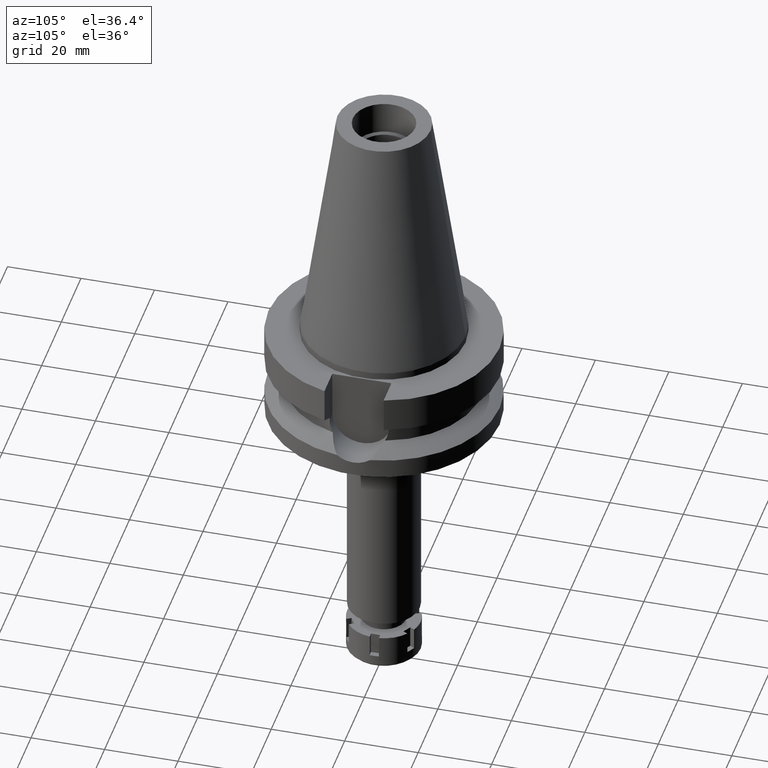
[diagram: clean part render]
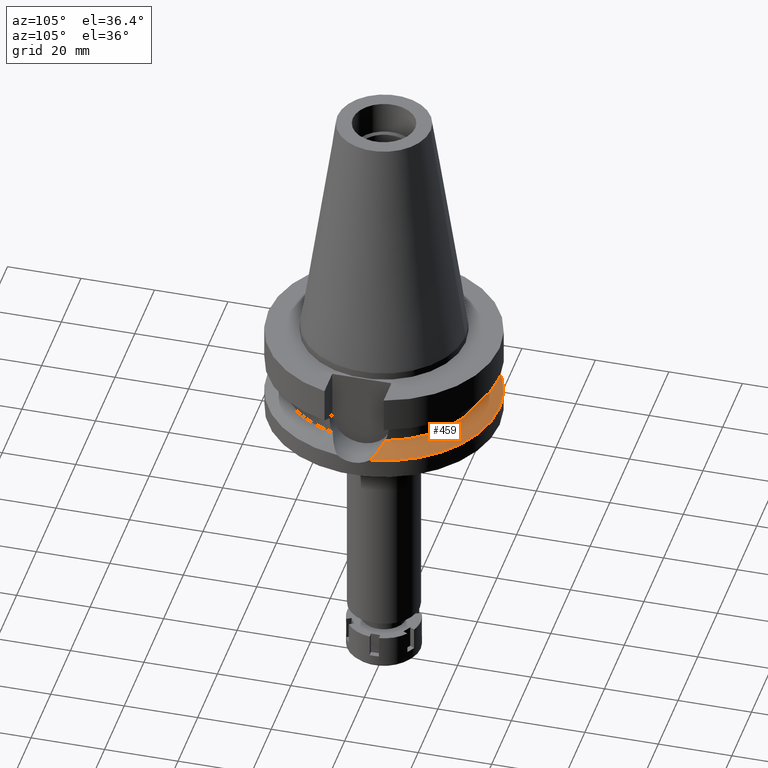
[diagram: same view with one face highlighted and labeled with its STEP entity id]
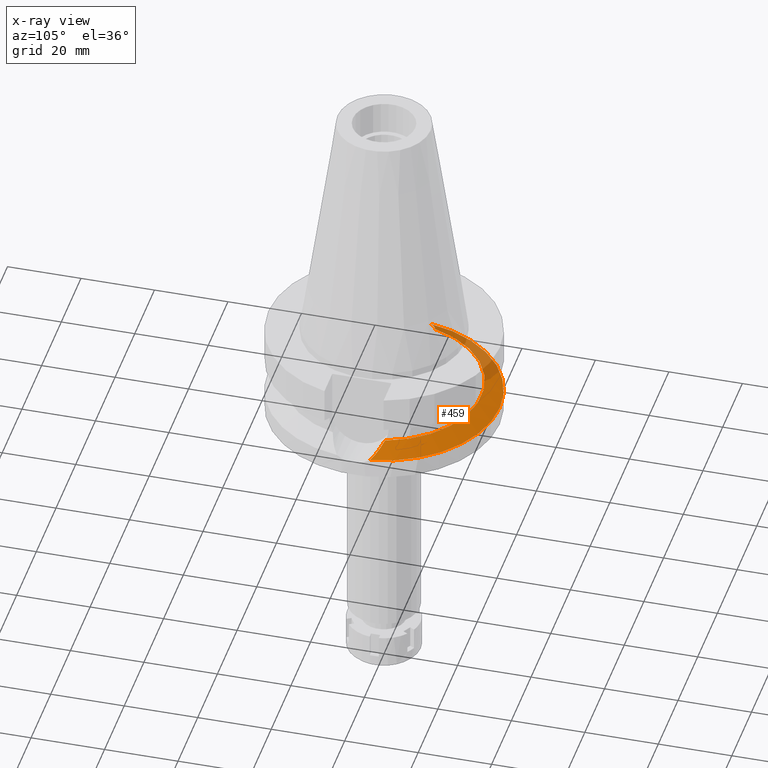
[diagram: x-ray of the same camera — body ghosted, the highlighted face saturated]
A machine part, auxiliary view. The second image highlights one B-rep face of the part: STEP entity #459.
The next image is the same camera in x-ray: the body ghosted, the highlighted face saturated — about 18% of this face is hidden behind the body in this view.
In plain terms, the highlighted conical surface has half-angle 60 deg.
Its self-contained STEP definition (entity closure, byte-faithful):
#87 = B_SPLINE_CURVE_WITH_KNOTS ( 'NONE', 3,
 ( #1014, #138, #1032, #2158, #3281, #748, #2915, #409, #1244, #2360, #3486, #958, #1385, #2211, #1067, #1917 ),
 .UNSPECIFIED., .F., .F.,
 ( 4, 2, 2, 2, 1, 1, 2, 2, 4 ),
 ( 0.0000000000000000000, 0.2499999999999975575, 0.4999999999999951150, 0.6249999999999943379, 0.6874999999999933387, 0.7187499999999924505, 0.7343749999999927836, 0.7499999999999932276, 1.000000000000000000 ),
 .UNSPECIFIED. ) ;
#92 = EDGE_CURVE ( 'NONE', #1330, #2366, #2931, .T. ) ;
#138 = CARTESIAN_POINT ( 'NONE',  ( -30.86032972888177284, 4.727300450069493287, -21.47226185997874026 ) ) ;
#224 = B_SPLINE_CURVE_WITH_KNOTS ( 'NONE', 3,
 ( #1976, #1682, #1993, #3602, #536, #872, #1706, #3364, #2549, #1722, #1411, #292, #3068, #3123, #2769, #3323, #313 ),
 .UNSPECIFIED., .F., .F.,
 ( 4, 2, 2, 1, 2, 2, 1, 1, 2, 4 ),
 ( 0.0000000000000000000, 0.5000000000000038858, 0.6250000000000056621, 0.6562500000000051070, 0.6640625000000048850, 0.6679687500000049960, 0.6718750000000049960, 0.6875000000000049960, 0.7500000000000032196, 1.000000000000000000 ),
 .UNSPECIFIED. ) ;
#258 = ORIENTED_EDGE ( 'NONE', *, *, #1332, .F. ) ;
#268 = DIRECTION ( 'NONE',  ( 0.0000000000000000000, 0.0000000000000000000, -1.000000000000000000 ) ) ;
#292 = CARTESIAN_POINT ( 'NONE',  ( 27.47216602194703228, 6.468187923245256599, -19.74223117247825954 ) ) ;
#313 = CARTESIAN_POINT ( 'NONE',  ( 25.53175183775000079, 7.097862220092999941, -18.74774300138999905 ) ) ;
#346 = DIRECTION ( 'NONE',  ( 0.0000000000000000000, 0.0000000000000000000, -1.000000000000000000 ) ) ;
#379 = DIRECTION ( 'NONE',  ( -0.9898094849552905306, 0.1423979757318985240, 0.0000000000000000000 ) ) ;
#409 = CARTESIAN_POINT ( 'NONE',  ( -27.98981289180329313, 6.263492374404993512, -20.00749629558576004 ) ) ;
#457 = DIRECTION ( 'NONE',  ( 0.0000000000000000000, 0.0000000000000000000, -1.000000000000000000 ) ) ;
#459 = ADVANCED_FACE ( 'NONE', ( #529 ), #2879, .T. ) ;
#529 = FACE_OUTER_BOUND ( 'NONE', #3400, .T. ) ;
#536 = CARTESIAN_POINT ( 'NONE',  ( 28.07309999939315048, 6.231437689321792206, -20.04933951519148394 ) ) ;
#668 = ORIENTED_EDGE ( 'NONE', *, *, #92, .F. ) ;
#748 = CARTESIAN_POINT ( 'NONE',  ( -28.61196776616745296, 5.994356437348675293, -20.32549372936791343 ) ) ;
#807 = ORIENTED_EDGE ( 'NONE', *, *, #2156, .F. ) ;
#830 = EDGE_CURVE ( 'NONE', #1330, #1326, #87, .T. ) ;
#872 = CARTESIAN_POINT ( 'NONE',  ( 27.73076219387298735, 6.368286279828025975, -19.87436834082274828 ) ) ;
#914 = ORIENTED_EDGE ( 'NONE', *, *, #830, .T. ) ;
#958 = CARTESIAN_POINT ( 'NONE',  ( -27.39108505831293527, 6.498442941451746613, -19.70117476956721703 ) ) ;
#1014 = CARTESIAN_POINT ( 'NONE',  ( -31.17899877608999759, 4.485536235554000051, -21.63449434733000132 ) ) ;
#1032 = CARTESIAN_POINT ( 'NONE',  ( -30.50623290938976240, 4.967307876415580026, -21.29187658601650668 ) ) ;
#1067 = CARTESIAN_POINT ( 'NONE',  ( -26.19287759724461040, 6.916130077656307940, -19.08739465962180049 ) ) ;
#1244 = CARTESIAN_POINT ( 'NONE',  ( -27.79548969834211292, 6.342925238653681852, -19.90812016838547294 ) ) ;
#1250 = CARTESIAN_POINT ( 'NONE',  ( 0.0000000000000000000, 0.0000000000000000000, -21.63449434733000132 ) ) ;
#1296 = VERTEX_POINT ( 'NONE', #2427 ) ;
#1314 = CARTESIAN_POINT ( 'NONE',  ( 0.0000000000000000000, 0.0000000000000000000, -21.63449434733000132 ) ) ;
#1326 = VERTEX_POINT ( 'NONE', #2512 ) ;
#1330 = VERTEX_POINT ( 'NONE', #2269 ) ;
#1332 = EDGE_CURVE ( 'NONE', #1449, #1296, #224, .T. ) ;
#1385 = CARTESIAN_POINT ( 'NONE',  ( -27.35550585259170830, 6.511715969301986817, -19.68296171336244171 ) ) ;
#1390 = CARTESIAN_POINT ( 'NONE',  ( 0.0000000000000000000, 0.0000000000000000000, -20.19111867435999841 ) ) ;
#1408 = CIRCLE ( 'NONE', #2943, 26.50000000000000000 ) ;
#1411 = CARTESIAN_POINT ( 'NONE',  ( 27.50786201929160413, 6.454603044755333308, -19.76046985264522249 ) ) ;
#1449 = VERTEX_POINT ( 'NONE', #3213 ) ;
#1682 = CARTESIAN_POINT ( 'NONE',  ( 30.47193627582761266, 5.021962385149107533, -21.27453309870601927 ) ) ;
#1706 = CARTESIAN_POINT ( 'NONE',  ( 27.64441911265427620, 6.402214308449976521, -19.83024259971176662 ) ) ;
#1722 = CARTESIAN_POINT ( 'NONE',  ( 27.52212522253209670, 6.449165464272829773, -19.76775730843760570 ) ) ;
#1807 = AXIS2_PLACEMENT_3D ( 'NONE', #1250, #346, #379 ) ;
#1895 = DIRECTION ( 'NONE',  ( 0.0000000000000000000, 1.000000000000000000, 0.0000000000000000000 ) ) ;
#1917 = CARTESIAN_POINT ( 'NONE',  ( -25.53175183775000079, 7.097862220092999941, -18.74774300138999905 ) ) ;
#1976 = CARTESIAN_POINT ( 'NONE',  ( 31.17899877608999759, 4.485536235554000051, -21.63449434733000132 ) ) ;
#1993 = CARTESIAN_POINT ( 'NONE',  ( 29.60950638460437290, 5.537010137810333354, -20.83481307751188893 ) ) ;
#2156 = EDGE_CURVE ( 'NONE', #1296, #1326, #1408, .T. ) ;
#2158 = CARTESIAN_POINT ( 'NONE',  ( -29.72729786355385073, 5.436249340728330992, -20.89480046487569709 ) ) ;
#2211 = CARTESIAN_POINT ( 'NONE',  ( -26.79001398397355871, 6.720942881516230649, -19.39345768061916786 ) ) ;
#2225 = AXIS2_PLACEMENT_3D ( 'NONE', #1390, #268, #3335 ) ;
#2254 = DIRECTION ( 'NONE',  ( 0.0000000000000000000, 0.0000000000000000000, 1.000000000000000000 ) ) ;
#2269 = CARTESIAN_POINT ( 'NONE',  ( -31.17899877608999759, 4.485536235554000051, -21.63449434733000132 ) ) ;
#2311 = CARTESIAN_POINT ( 'NONE',  ( 0.0000000000000000000, 31.50000000000000000, -21.63449434733000132 ) ) ;
#2360 = CARTESIAN_POINT ( 'NONE',  ( -27.56133985203772951, 6.434045890720126337, -19.78831492561573313 ) ) ;
#2366 = VERTEX_POINT ( 'NONE', #2311 ) ;
#2427 = CARTESIAN_POINT ( 'NONE',  ( 25.53175183775000079, 7.097862220092999941, -18.74774300138999905 ) ) ;
#2453 = EDGE_CURVE ( 'NONE', #2366, #1449, #3291, .T. ) ;
#2512 = CARTESIAN_POINT ( 'NONE',  ( -25.53175183775000079, 7.097862220092999941, -18.74774300138999905 ) ) ;
#2549 = CARTESIAN_POINT ( 'NONE',  ( 27.53088343634419743, 6.445821127107357995, -19.77223197169773528 ) ) ;
#2769 = CARTESIAN_POINT ( 'NONE',  ( 26.57880524411125478, 6.789416282836437944, -19.28524454639907049 ) ) ;
#2879 = CONICAL_SURFACE ( 'NONE', #2225, 29.00000000000000000, 1.047197551196400456 ) ;
#2915 = CARTESIAN_POINT ( 'NONE',  ( -28.36993029448185055, 6.103172289129155992, -20.20182977546896197 ) ) ;
#2931 = CIRCLE ( 'NONE', #1807, 31.50000000000001421 ) ;
#2943 = AXIS2_PLACEMENT_3D ( 'NONE', #3328, #2254, #3086 ) ;
#3056 = AXIS2_PLACEMENT_3D ( 'NONE', #1314, #457, #1895 ) ;
#3068 = CARTESIAN_POINT ( 'NONE',  ( 27.32144505898904541, 6.525052543549991313, -19.66520776619602273 ) ) ;
#3080 = ORIENTED_EDGE ( 'NONE', *, *, #2453, .F. ) ;
#3086 = DIRECTION ( 'NONE',  ( 0.0000000000000000000, 1.000000000000000000, 0.0000000000000000000 ) ) ;
#3123 = CARTESIAN_POINT ( 'NONE',  ( 27.17486214527392363, 6.578458441455244277, -19.59024629790452465 ) ) ;
#3213 = CARTESIAN_POINT ( 'NONE',  ( 31.17899877608999759, 4.485536235554000051, -21.63449434733000132 ) ) ;
#3281 = CARTESIAN_POINT ( 'NONE',  ( -29.30382755615681489, 5.664527807042158081, -20.67881049299519702 ) ) ;
#3291 = CIRCLE ( 'NONE', #3056, 31.50000000000000000 ) ;
#3323 = CARTESIAN_POINT ( 'NONE',  ( 26.07083893501411964, 6.949676414686277504, -19.02469761083838762 ) ) ;
#3328 = CARTESIAN_POINT ( 'NONE',  ( 0.0000000000000000000, 0.0000000000000000000, -18.74774300138999905 ) ) ;
#3335 = DIRECTION ( 'NONE',  ( 0.0000000000000000000, -1.000000000000000000, 0.0000000000000000000 ) ) ;
#3364 = CARTESIAN_POINT ( 'NONE',  ( 27.55712774413721533, 6.435775104552218018, -19.78564096782787729 ) ) ;
#3400 = EDGE_LOOP ( 'NONE', ( #807, #258, #3080, #668, #914 ) ) ;
#3486 = CARTESIAN_POINT ( 'NONE',  ( -27.45939889156127833, 6.472734580295260720, -19.73614130134956213 ) ) ;
#3602 = CARTESIAN_POINT ( 'NONE',  ( 28.33725978187423422, 6.118323035664908538, -20.18441124867151970 ) ) ;